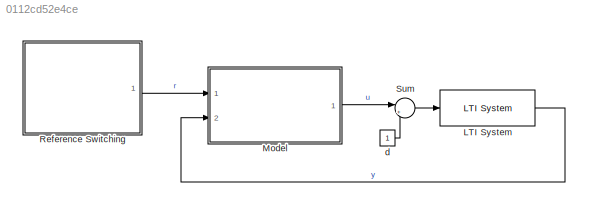
MODEL slx_0112cd52e4ce
KIND model
CONFIG AbsTol = auto
CONFIG EnableMultiTasking = off
CONFIG FixedStep = auto
CONFIG MaxStep = auto
CONFIG MinStep = auto
CONFIG RelTol = 1e-3
CONFIG SampleTimeConstraint = Unconstrained
CONFIG SolverName = VariableStepAuto
CONFIG StartTime = 0.0
CONFIG StopTime = 20
BLOCK [Reference] LTI System  REF=cstblocks/LTI System
  Ports = [1, 1]
  SourceBlock = cstblocks/LTI System
  SourceProductBaseCode = CT
  SourceType = LTI Block
BLOCK [ModelReference] Model
  ModelNameDialog = Controller_Observer_Model.slx
  ModelReferenceVersion = 1.6
  Ports = [2, 1]
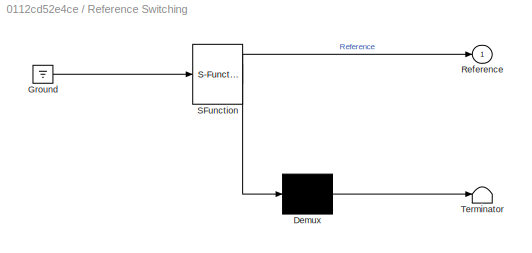
BLOCK [SubSystem] Reference Switching
  ErrorFcn = Stateflow.Translate.translate
  PermitHierarchicalResolution = ExplicitOnly
  Ports = [0, 1]
  RequestExecContextInheritance = off
  SFBlockType = Chart
  TreatAsAtomicUnit = on
BLOCK [Demux] Reference Switching/ Demux 
  Outputs = 1
  Ports = [1, 1]
BLOCK [Ground] Reference Switching/ Ground 
BLOCK [S-Function] Reference Switching/ SFunction 
  EnableBusSupport = on
  FunctionName = sf_sfun
  PortCounts = [1 2]
  Ports = [1, 2]
  SFcnIsStateOwnerBlock = off
  SFunctionDeploymentMode = off
  Tag = Stateflow S-Function 3
BLOCK [Terminator] Reference Switching/ Terminator 
BLOCK [Outport] Reference Switching/Reference
BLOCK [Sum] Sum
  Inputs = |++
  Ports = [2, 1]
BLOCK [Constant] d
LINE LTI System:1 -> Model:2
LINE Model:1 -> Sum:1
LINE Reference Switching:1 -> Model:1
LINE Sum:1 -> LTI System:1
LINE d:1 -> Sum:2
CHART Reference Switching states=6 transitions=7
  STATE_LABEL 'S1\nReference=0;'
  STATE_LABEL 'S2\nReference=80;'
  STATE_LABEL 'S3\nReference=125;'
  STATE_LABEL 's7\nReference=-125;'
  STATE_LABEL 's6\nReference=-80;'
  STATE_LABEL 's5\nReference=0;'
CHART  states=0 transitions=0
